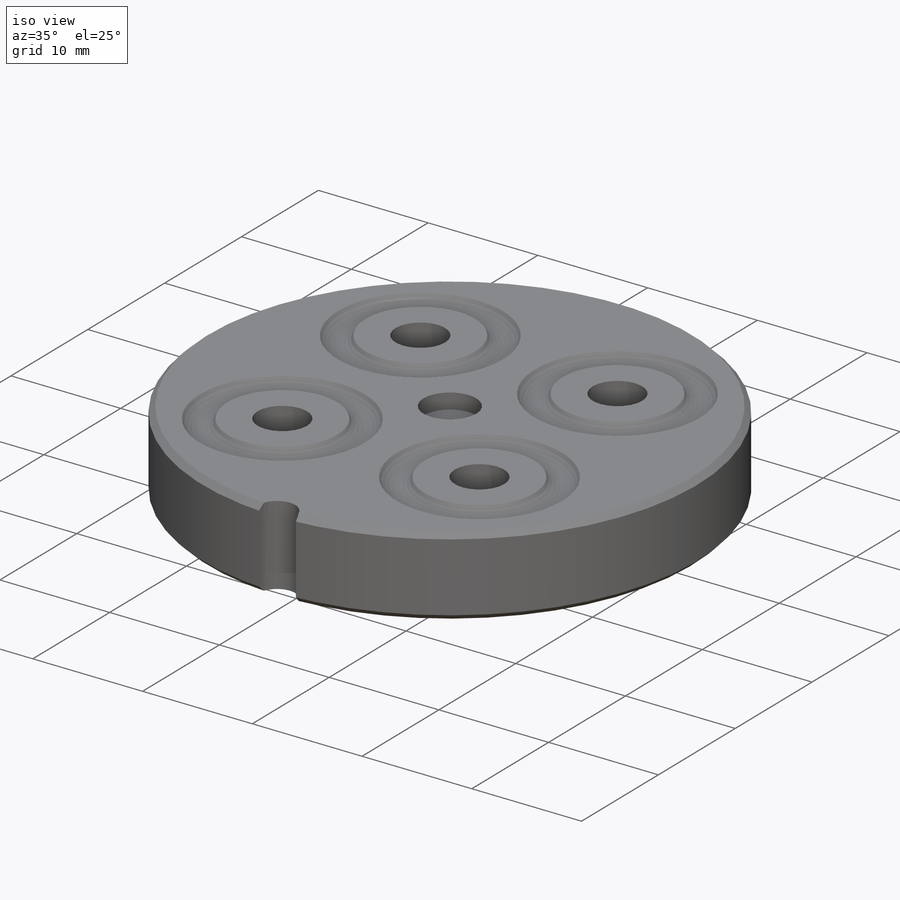
[diagram: iso view]
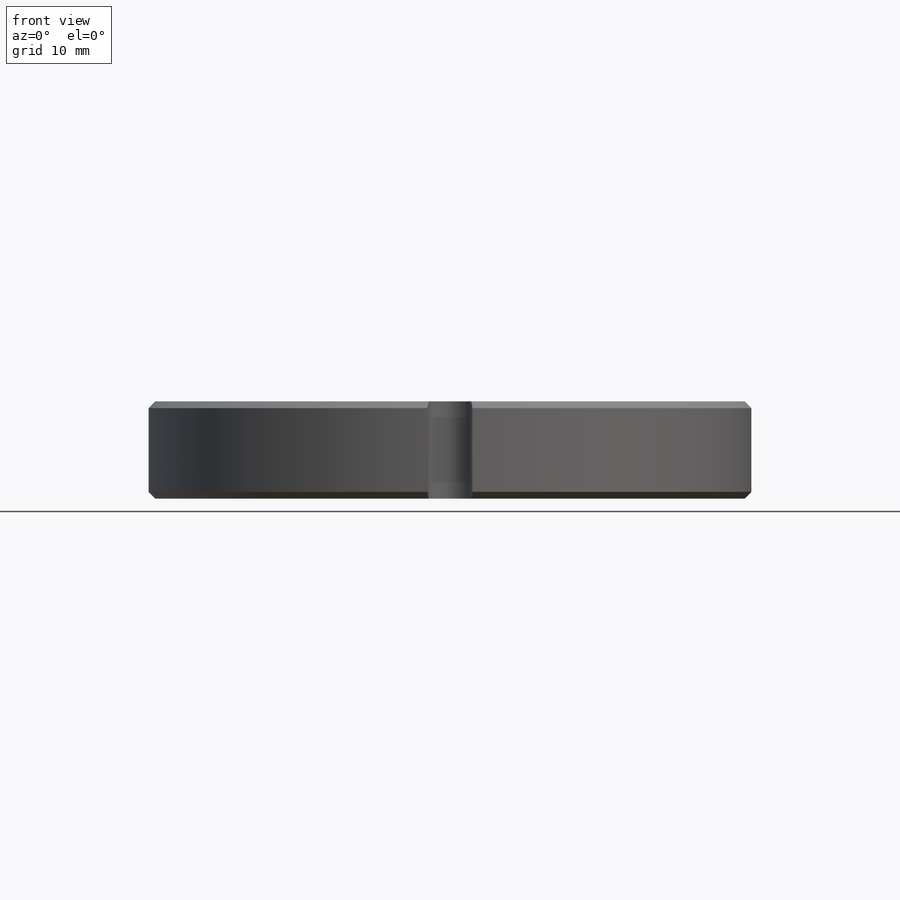
[diagram: front view]
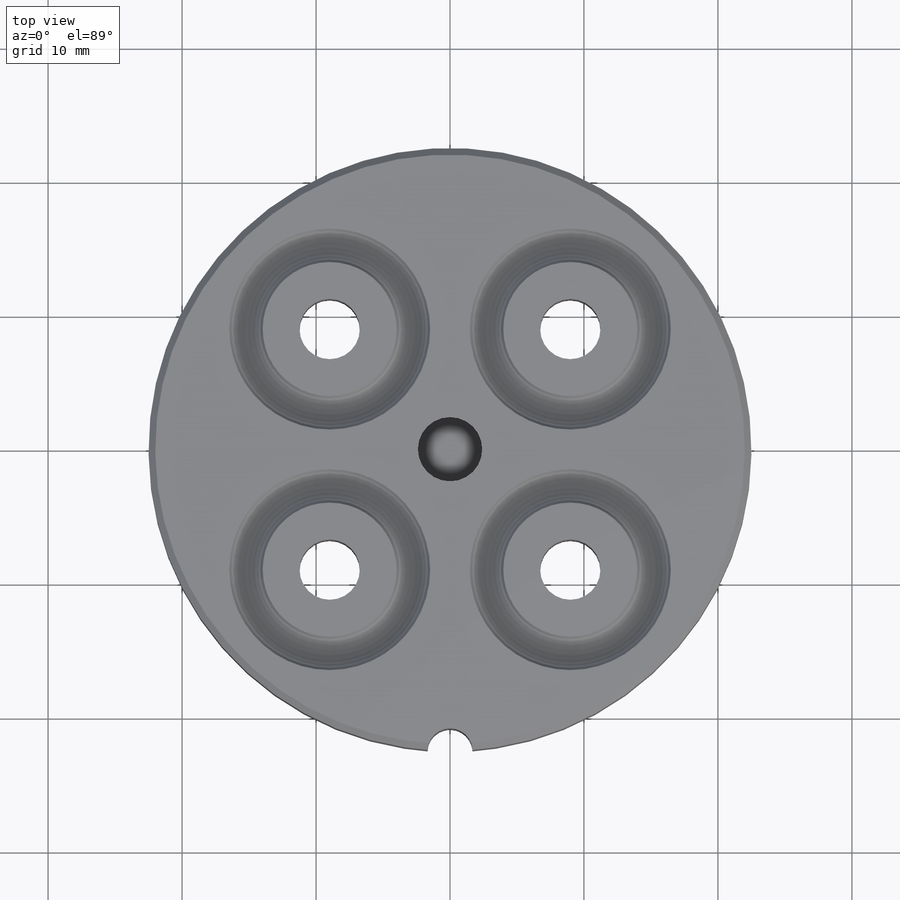
[diagram: top view]
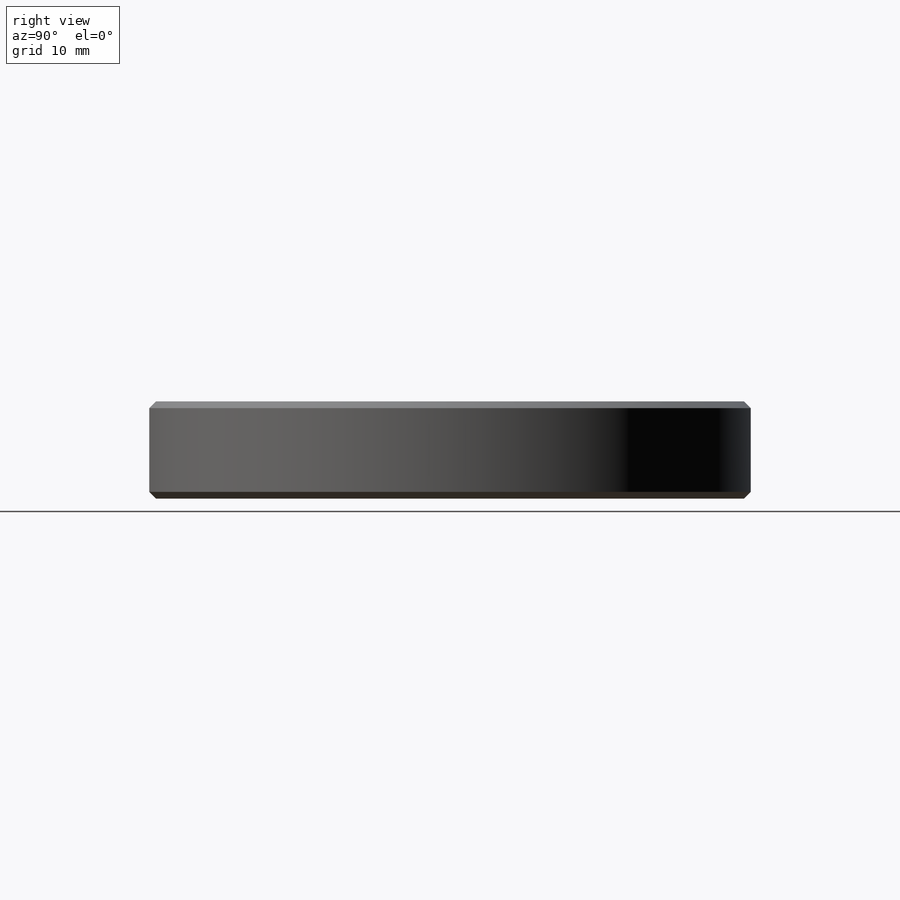
[diagram: right view]
SOLIDWORKS PART (.sldprt)
format: sldprt  version: not decoded by parser v0  size: 330,752 bytes
history: native  units: mm
features: sketch x4, plane x2, cut_extrude x2, material x1, extrude x1, chamfer x1, cut_revolve x1, pattern_circular x1 (+12 scaffold rows collapsed)
feature tree (25):
  scaffold x12  (default folders/planes/origin — collapsed)
  material  "Ceramic Porcelain"
  sketch  "Sketch1"  dims[D1=45.0mm D2=3.35mm]
  extrude  "Extrude1"  Depth=7.25mm
  chamfer  "Chamfer1"  Distance=0.5mm Angle=45deg
  plane  "Plane1"
  plane  "Plane2"
  sketch  "Sketch2"  dims[D1=25.4mm D2=4.5mm]
  cut_extrude  "Extrude2"  Depth=10mm
  sketch  "Sketch3"  dims[c1.D4=~1.600781mm c1.D6=~1.600781mm c1.D5=~1.36565mm c1.D1=7.975mm c2.D1=~0.522322deg c3.D1=12.7mm c3.D2=15.0mm c3.D3=10.0mm c3.D5=1.0mm c3.D4=7.8mm]
  cut_revolve  "Cut-Revolve1"  Angle=360deg
  pattern_circular  "CirPattern1"  Count=4 Angle=90deg
  sketch  "Sketch4"  dims[D1=4.8mm]
  cut_extrude  "Extrude3"  Depth=1.4mm
decode coverage: 10 of 10 modeling features carry decoded parameters
note: ~ marks probable driven/reference dimensions
note: suppression state not decoded; provenance and decode notes live in map.json
